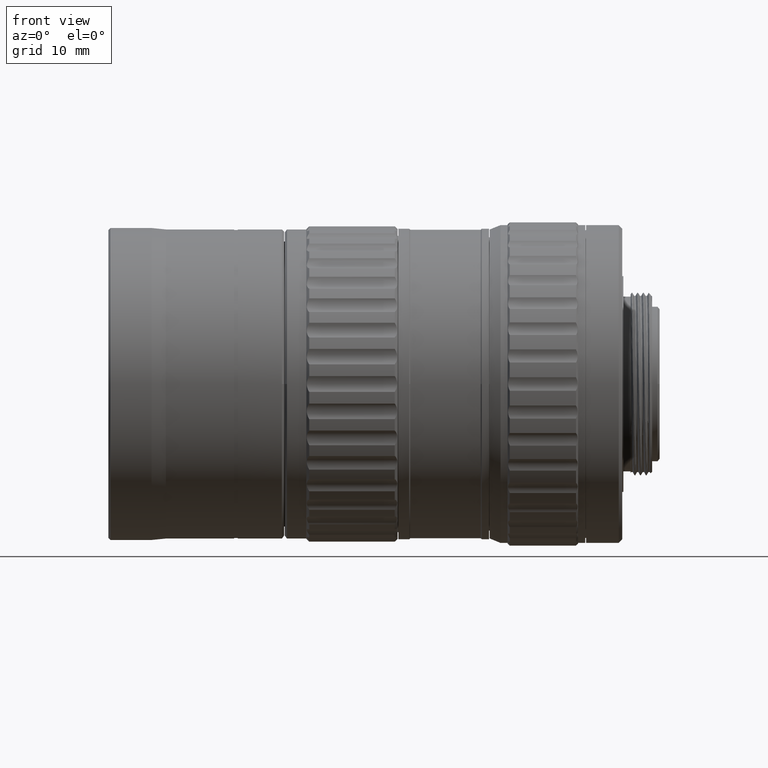
[diagram: clean part render]
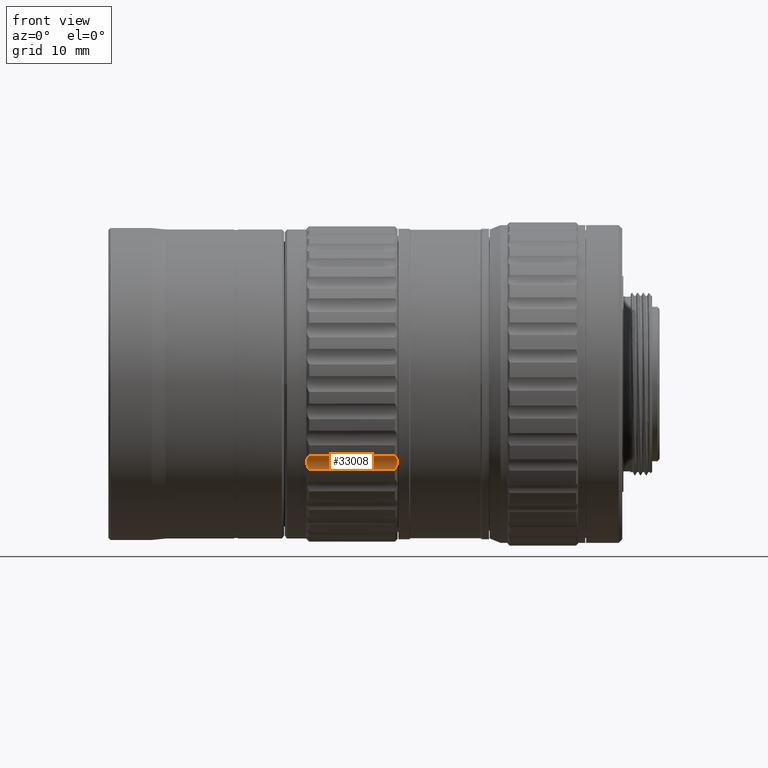
[diagram: same view with one face highlighted and labeled with its STEP entity id]
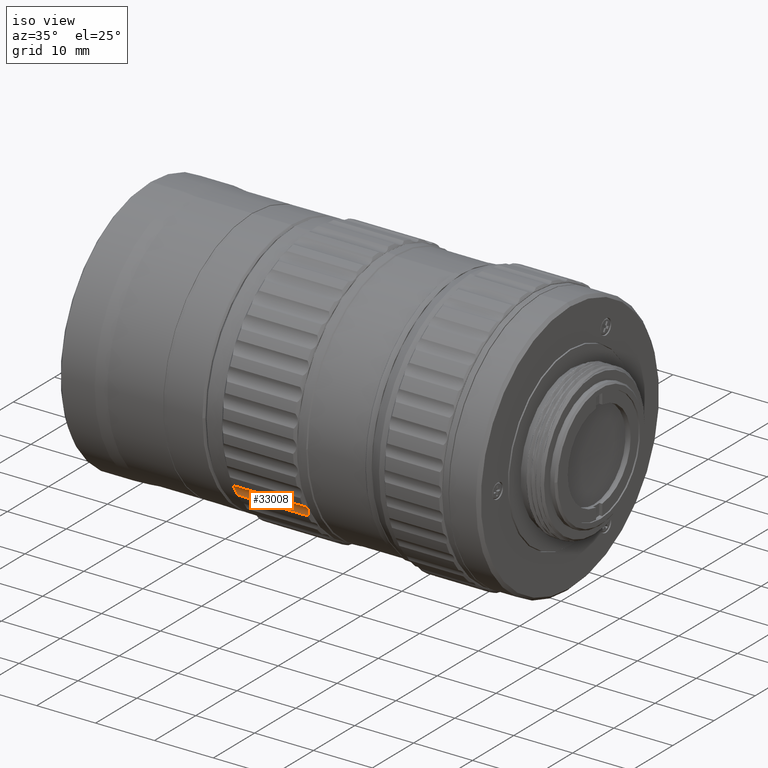
[diagram: same view with one face highlighted and labeled with its STEP entity id]
A machine part, front view. The second image highlights one B-rep face of the part: STEP entity #33008.
A second angle (iso view) of the same face is appended — the face is thin or edge-on in the first view.
In plain terms, the highlighted cylindrical surface (edge-blend (fillet) strip) has radius 2 mm, axis along (1, -0, 0).
Its self-contained STEP definition (entity closure, byte-faithful):
#1385 = CARTESIAN_POINT ( 'NONE',  ( 27.67190436790288288, -18.94059042316114017, -10.47069851268604523 ) ) ;
#1673 = CARTESIAN_POINT ( 'NONE',  ( 27.87670376289145580, -19.37353180753125770, -10.09777285870971930 ) ) ;
#1767 = VECTOR ( 'NONE', #31438, 1000.000000000000000 ) ;
#3529 = CARTESIAN_POINT ( 'NONE',  ( 40.18902858786466226, -18.93786951884548486, -10.47370035722213721 ) ) ;
#5769 = EDGE_CURVE ( 'NONE', #35139, #19557, #14574, .T. ) ;
#5834 = DIRECTION ( 'NONE',  ( 1.000000000000000000, -4.336808689937779581E-16, 7.511572993683345743E-16 ) ) ;
#6464 = ORIENTED_EDGE ( 'NONE', *, *, #51427, .T. ) ;
#6909 = EDGE_LOOP ( 'NONE', ( #36328, #34665, #6464, #49659 ) ) ;
#6977 = FACE_OUTER_BOUND ( 'NONE', #6909, .T. ) ;
#8082 = CARTESIAN_POINT ( 'NONE',  ( 27.98000316719981839, -19.53066910871208606, -10.01775744195879092 ) ) ;
#8389 = CARTESIAN_POINT ( 'NONE',  ( 39.98346955482731602, -19.37326815955797343, -10.09790711010826669 ) ) ;
#10184 = AXIS2_PLACEMENT_3D ( 'NONE', #54450, #5834, #40701 ) ;
#12117 = CARTESIAN_POINT ( 'NONE',  ( 39.87999683280216345, -19.53066910870936113, -10.01775744196017470 ) ) ;
#12464 = VERTEX_POINT ( 'NONE', #21445 ) ;
#12812 = VECTOR ( 'NONE', #41869, 1000.000000000000000 ) ;
#14560 = CARTESIAN_POINT ( 'NONE',  ( 27.98000316720021985, -18.44096698804161960, -11.90517688007607866 ) ) ;
#14574 = LINE ( 'NONE', #45923, #1767 ) ;
#15415 = CARTESIAN_POINT ( 'NONE',  ( 27.98000316719981839, -19.53066910871208606, -10.01775744195879092 ) ) ;
#15701 = CARTESIAN_POINT ( 'NONE',  ( 27.67097141213626088, -18.53942534040042744, -11.16382591827083459 ) ) ;
#17526 = CARTESIAN_POINT ( 'NONE',  ( 40.07060992364267804, -18.44509114091775004, -11.54483640506449227 ) ) ;
#19557 = VERTEX_POINT ( 'NONE', #25009 ) ;
#19985 = CARTESIAN_POINT ( 'NONE',  ( 27.63010281548971037, -18.75788925519721317, -10.71056526671531017 ) ) ;
#21445 = CARTESIAN_POINT ( 'NONE',  ( 39.87999683280216345, -19.53066910870936113, -10.01775744196017470 ) ) ;
#21542 = CARTESIAN_POINT ( 'NONE',  ( 40.07172439163027633, -19.21845951135903618, -10.20327036422899880 ) ) ;
#22086 = CARTESIAN_POINT ( 'NONE',  ( 40.22108428712387962, -18.61022679301117222, -10.98244807238731191 ) ) ;
#23553 = EDGE_CURVE ( 'NONE', #47935, #35139, #53325, .T. ) ;
#25009 = CARTESIAN_POINT ( 'NONE',  ( 39.87999683280177265, -18.44096698804146328, -11.90517688007301444 ) ) ;
#25128 = B_SPLINE_CURVE_WITH_KNOTS ( 'NONE', 3,
 ( #30118, #47556, #17526, #26367, #43790, #22086, #34111, #52424, #39505, #3529, #25814, #21542, #8389, #12117 ),
 .UNSPECIFIED., .F., .F.,
 ( 4, 2, 2, 2, 2, 2, 4 ),
 ( 8.182674270850422544E-16, 0.0006068514394152046834, 0.0009102771591223944320, 0.001213702878829584289, 0.001517128598536774146, 0.001820554318243963569, 0.002427405757658343283 ),
 .UNSPECIFIED. ) ;
#25814 = CARTESIAN_POINT ( 'NONE',  ( 40.16443306829688709, -19.00618617753036332, -10.40047666306957730 ) ) ;
#26367 = CARTESIAN_POINT ( 'NONE',  ( 40.16397877362451396, -18.50968250279226623, -11.26127979855111683 ) ) ;
#28407 = CYLINDRICAL_SURFACE ( 'NONE', #10184, 2.000000000000978329 ) ;
#30118 = CARTESIAN_POINT ( 'NONE',  ( 39.87999683280177265, -18.44096698804146328, -11.90517688007301444 ) ) ;
#30909 = EDGE_CURVE ( 'NONE', #12464, #47935, #40725, .T. ) ;
#31438 = DIRECTION ( 'NONE',  ( 1.000000000000000000, 0.000000000000000000, 0.000000000000000000 ) ) ;
#31989 = CARTESIAN_POINT ( 'NONE',  ( 27.78827560837144262, -18.44552109278086149, -11.54203897633154696 ) ) ;
#32832 = CARTESIAN_POINT ( 'NONE',  ( 27.63891571287542703, -18.81619242293216132, -10.62570513675019868 ) ) ;
#33008 = ADVANCED_FACE ( 'NONE', ( #6977 ), #28407, .F. ) ;
#34111 = CARTESIAN_POINT ( 'NONE',  ( 40.22989718450988050, -18.65456623746167608, -10.88952598302509855 ) ) ;
#34665 = ORIENTED_EDGE ( 'NONE', *, *, #5769, .T. ) ;
#35139 = VERTEX_POINT ( 'NONE', #39808 ) ;
#36274 = CARTESIAN_POINT ( 'NONE',  ( 27.69556693170426698, -18.51017009044807793, -11.25960172726981412 ) ) ;
#36328 = ORIENTED_EDGE ( 'NONE', *, *, #23553, .T. ) ;
#37418 = CARTESIAN_POINT ( 'NONE',  ( 27.62990515201255093, -18.65619122349384895, -10.88634960002289809 ) ) ;
#39505 = CARTESIAN_POINT ( 'NONE',  ( 40.22178865185373553, -18.81269857820325342, -10.63046695613839354 ) ) ;
#39808 = CARTESIAN_POINT ( 'NONE',  ( 27.98000316720021985, -18.44096698804161960, -11.90517688007607866 ) ) ;
#40701 = DIRECTION ( 'NONE',  ( 0.000000000000000000, 0.000000000000000000, -1.000000000000000000 ) ) ;
#40725 = LINE ( 'NONE', #55634, #12812 ) ;
#41413 = CARTESIAN_POINT ( 'NONE',  ( 27.69602122637395070, -19.00739563606108717, -10.39921536413278780 ) ) ;
#41869 = DIRECTION ( 'NONE',  ( -1.000000000000000000, -0.000000000000000000, -0.000000000000000000 ) ) ;
#43790 = CARTESIAN_POINT ( 'NONE',  ( 40.18809563209585889, -18.53818611893169077, -11.16768321279784004 ) ) ;
#45923 = CARTESIAN_POINT ( 'NONE',  ( 33.92999999999999972, -18.44096698804149526, -11.90517688007369834 ) ) ;
#47556 = CARTESIAN_POINT ( 'NONE',  ( 39.98329623710743874, -18.43169372105182191, -11.72908427699713663 ) ) ;
#47935 = VERTEX_POINT ( 'NONE', #8082 ) ;
#49659 = ORIENTED_EDGE ( 'NONE', *, *, #30909, .T. ) ;
#51427 = EDGE_CURVE ( 'NONE', #19557, #12464, #25128, .T. ) ;
#52424 = CARTESIAN_POINT ( 'NONE',  ( 40.23009484798760127, -18.75595091984133944, -10.71356073740091297 ) ) ;
#53325 = B_SPLINE_CURVE_WITH_KNOTS ( 'NONE', 3,
 ( #15415, #1673, #54311, #41413, #1385, #32832, #19985, #37418, #54883, #15701, #36274, #31989, #53756, #14560 ),
 .UNSPECIFIED., .F., .F.,
 ( 4, 2, 2, 2, 2, 2, 4 ),
 ( 4.297611725817321940E-15, 0.0006068514394183565676, 0.0009102771591253839027, 0.001213702878832411455, 0.001517128598539438898, 0.001820554318246465908, 0.002427405757660512989 ),
 .UNSPECIFIED. ) ;
#53756 = CARTESIAN_POINT ( 'NONE',  ( 27.87653044517288947, -18.43167816218688770, -11.72878882545396806 ) ) ;
#54311 = CARTESIAN_POINT ( 'NONE',  ( 27.78939007635499436, -19.22066717977479300, -10.20149930062722632 ) ) ;
#54450 = CARTESIAN_POINT ( 'NONE',  ( 27.54165751232869752, -20.43819952931000472, -11.80000000000000071 ) ) ;
#54883 = CARTESIAN_POINT ( 'NONE',  ( 27.63821134814669378, -18.61260372720520095, -10.97704140440089127 ) ) ;
#55634 = CARTESIAN_POINT ( 'NONE',  ( 33.92999999999999972, -19.53066910870935402, -10.01775744196018181 ) ) ;